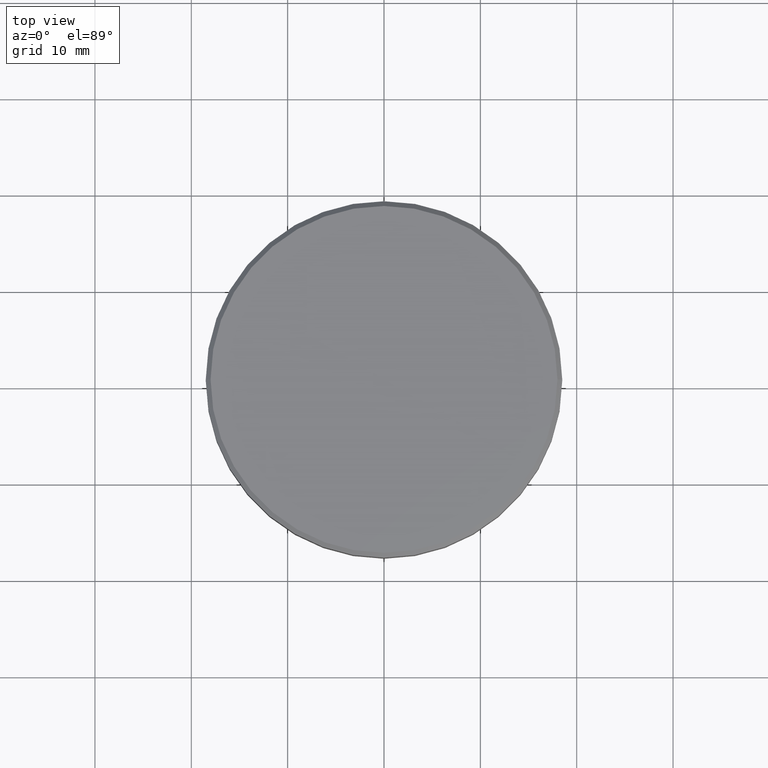
[diagram: clean part render]
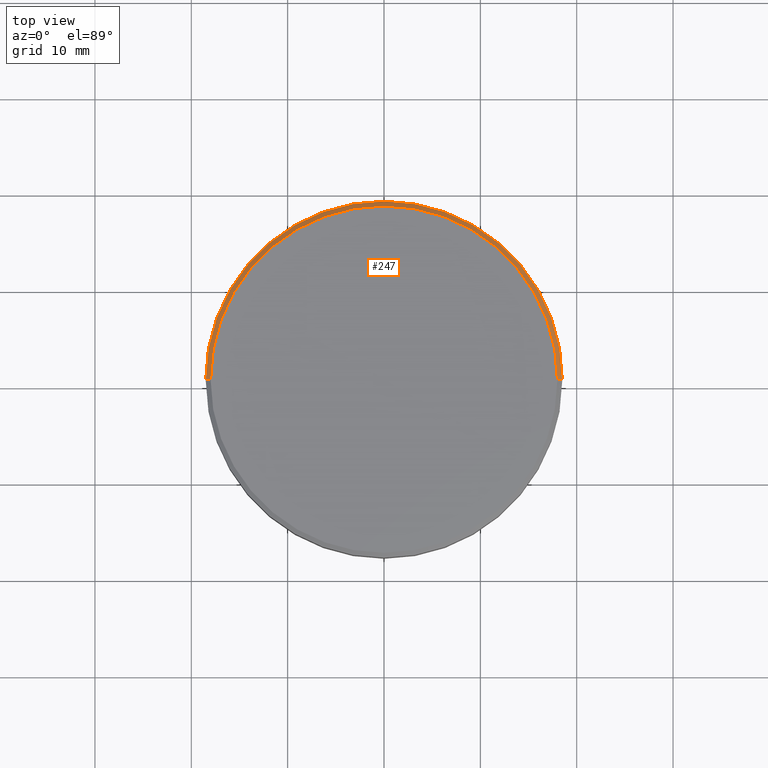
[diagram: same view with one face highlighted and labeled with its STEP entity id]
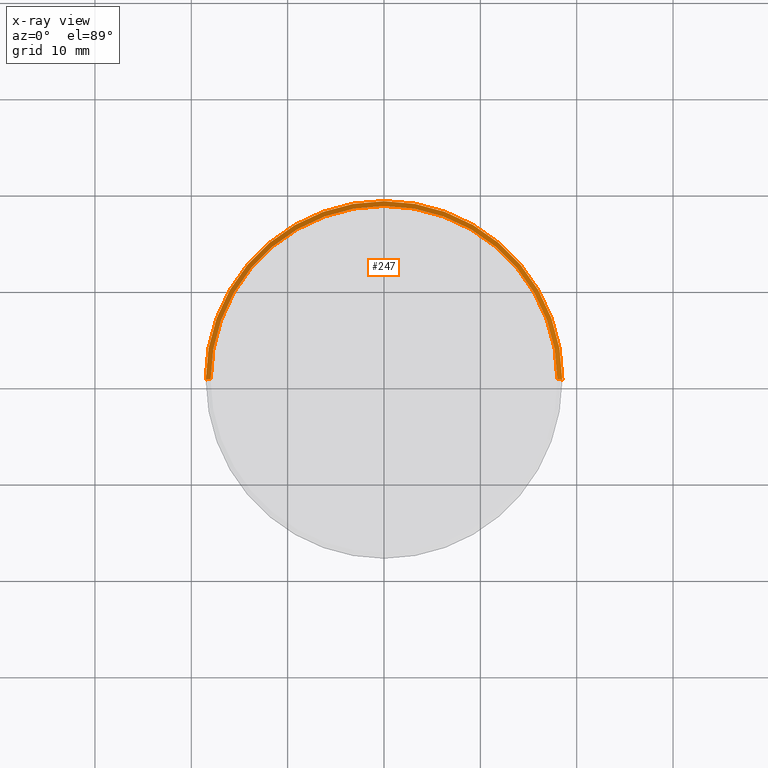
[diagram: x-ray of the same camera — body ghosted, the highlighted face saturated]
A machine part, top view. The second image highlights one B-rep face of the part: STEP entity #247.
The next image is the same camera in x-ray: the body ghosted, the highlighted face saturated — about 0% of this face is hidden behind the body in this view.
In plain terms, the highlighted conical surface has half-angle 45 deg.
Its self-contained STEP definition (entity closure, byte-faithful):
#4 = CARTESIAN_POINT ( 'NONE',  ( -18.50000000000000000, 2.265596578422603396E-15, -0.5000000000000143219 ) ) ;
#9 = AXIS2_PLACEMENT_3D ( 'NONE', #25, #23, #203 ) ;
#23 = DIRECTION ( 'NONE',  ( 0.000000000000000000, 0.000000000000000000, -1.000000000000000000 ) ) ;
#25 = CARTESIAN_POINT ( 'NONE',  ( 0.000000000000000000, 0.000000000000000000, -0.5000000000000143219 ) ) ;
#49 = VERTEX_POINT ( 'NONE', #126 ) ;
#55 = FACE_OUTER_BOUND ( 'NONE', #57, .T. ) ;
#57 = EDGE_LOOP ( 'NONE', ( #215, #384, #121, #125 ) ) ;
#58 = CARTESIAN_POINT ( 'NONE',  ( -17.99999999999998224, 0.000000000000000000, 0.000000000000000000 ) ) ;
#85 = LINE ( 'NONE', #171, #358 ) ;
#88 = DIRECTION ( 'NONE',  ( 0.7071067811865500152, 8.659560562354962440E-17, -0.7071067811865451302 ) ) ;
#94 = DIRECTION ( 'NONE',  ( -1.000000000000000000, 0.000000000000000000, 0.000000000000000000 ) ) ;
#118 = VERTEX_POINT ( 'NONE', #152 ) ;
#121 = ORIENTED_EDGE ( 'NONE', *, *, #159, .F. ) ;
#125 = ORIENTED_EDGE ( 'NONE', *, *, #279, .F. ) ;
#126 = CARTESIAN_POINT ( 'NONE',  ( 18.50000000000000000, 0.000000000000000000, -0.5000000000000143219 ) ) ;
#136 = AXIS2_PLACEMENT_3D ( 'NONE', #307, #240, #94 ) ;
#152 = CARTESIAN_POINT ( 'NONE',  ( 17.99999999999998224, 2.234980408443918426E-15, 0.000000000000000000 ) ) ;
#159 = EDGE_CURVE ( 'NONE', #375, #49, #164, .T. ) ;
#164 = CIRCLE ( 'NONE', #9, 18.50000000000000000 ) ;
#169 = EDGE_CURVE ( 'NONE', #118, #399, #335, .T. ) ;
#171 = CARTESIAN_POINT ( 'NONE',  ( 17.99999999999998224, 2.204364238465233456E-15, 0.000000000000000000 ) ) ;
#198 = CONICAL_SURFACE ( 'NONE', #136, 17.99999999999998224, 0.7853981633974517207 ) ;
#200 = EDGE_CURVE ( 'NONE', #118, #49, #85, .T. ) ;
#203 = DIRECTION ( 'NONE',  ( 1.000000000000000000, 0.000000000000000000, 0.000000000000000000 ) ) ;
#213 = CARTESIAN_POINT ( 'NONE',  ( 0.000000000000000000, 0.000000000000000000, 0.000000000000000000 ) ) ;
#215 = ORIENTED_EDGE ( 'NONE', *, *, #169, .F. ) ;
#240 = DIRECTION ( 'NONE',  ( 0.000000000000000000, 0.000000000000000000, -1.000000000000000000 ) ) ;
#247 = ADVANCED_FACE ( 'NONE', ( #55 ), #198, .T. ) ;
#271 = DIRECTION ( 'NONE',  ( 1.000000000000000000, 0.000000000000000000, 0.000000000000000000 ) ) ;
#276 = DIRECTION ( 'NONE',  ( -0.7071067811865500152, 0.000000000000000000, -0.7071067811865451302 ) ) ;
#278 = LINE ( 'NONE', #58, #282 ) ;
#279 = EDGE_CURVE ( 'NONE', #399, #375, #278, .T. ) ;
#282 = VECTOR ( 'NONE', #276, 1000.000000000000114 ) ;
#302 = AXIS2_PLACEMENT_3D ( 'NONE', #213, #334, #271 ) ;
#307 = CARTESIAN_POINT ( 'NONE',  ( 0.000000000000000000, 0.000000000000000000, 0.000000000000000000 ) ) ;
#320 = CARTESIAN_POINT ( 'NONE',  ( -17.99999999999998224, 0.000000000000000000, 0.000000000000000000 ) ) ;
#334 = DIRECTION ( 'NONE',  ( -0.000000000000000000, -0.000000000000000000, 1.000000000000000000 ) ) ;
#335 = CIRCLE ( 'NONE', #302, 17.99999999999998224 ) ;
#358 = VECTOR ( 'NONE', #88, 1000.000000000000114 ) ;
#375 = VERTEX_POINT ( 'NONE', #4 ) ;
#384 = ORIENTED_EDGE ( 'NONE', *, *, #200, .T. ) ;
#399 = VERTEX_POINT ( 'NONE', #320 ) ;